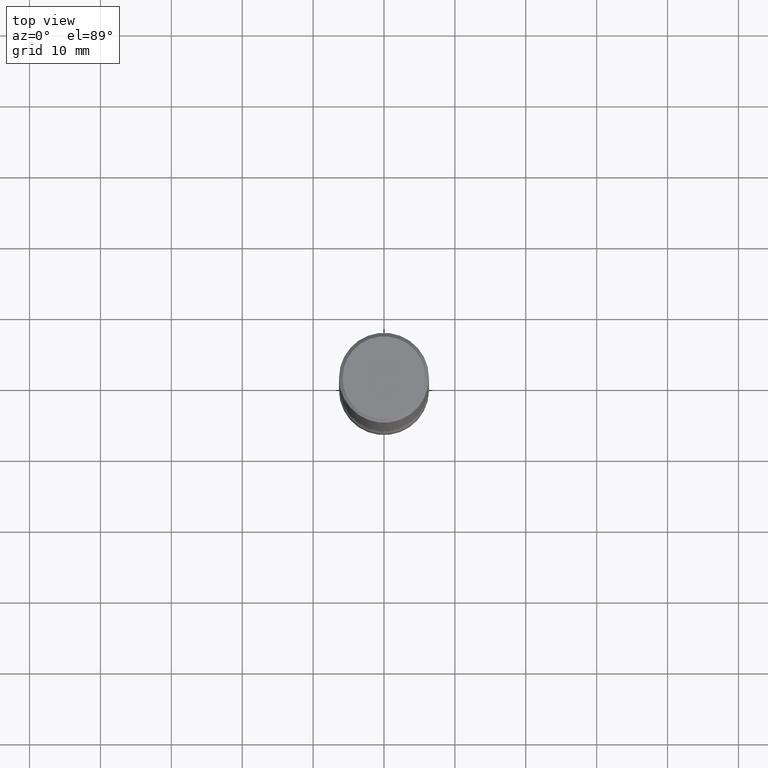
[diagram: clean part render]
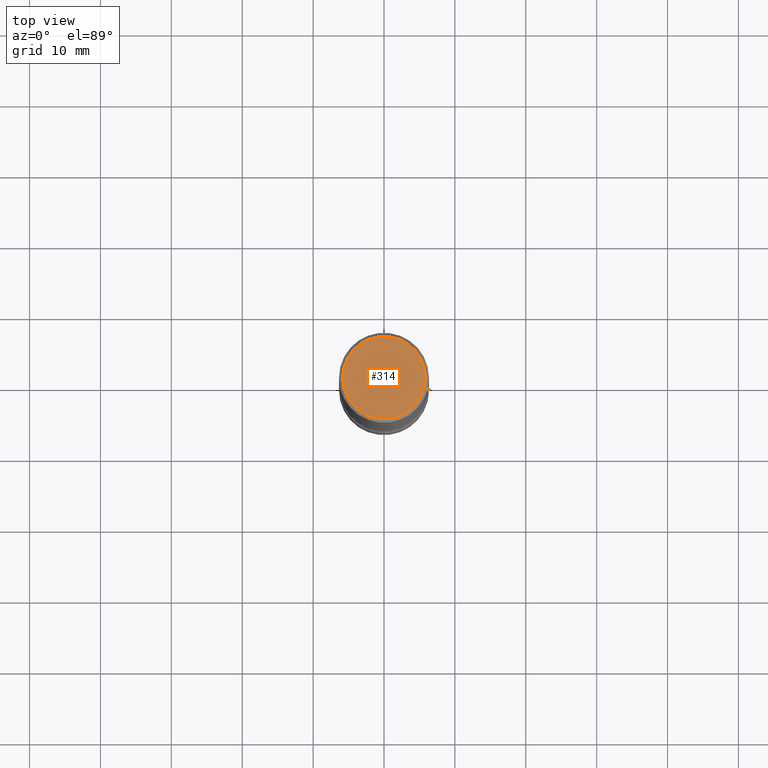
[diagram: same view with one face highlighted and labeled with its STEP entity id]
A machine part, top view. The second image highlights one B-rep face of the part: STEP entity #314.
In plain terms, the highlighted planar face has unit normal (0, -0, -1).
Its self-contained STEP definition (entity closure, byte-faithful):
#2 = FACE_OUTER_BOUND ( 'NONE', #260, .T. ) ;
#7 = CARTESIAN_POINT ( 'NONE',  ( 1.606081415867839292E-15, 0.2299999999999997324, -8.009064516888723911E-16 ) ) ;
#76 = CIRCLE ( 'NONE', #711, 0.2299999999999997324 ) ;
#77 = CIRCLE ( 'NONE', #584, 0.2299999999999997324 ) ;
#141 = VERTEX_POINT ( 'NONE', #302 ) ;
#142 = CARTESIAN_POINT ( 'NONE',  ( -1.043851414335219820E-46, 1.490343170380447200E-32, 4.268512490100411279E-18 ) ) ;
#241 = CARTESIAN_POINT ( 'NONE',  ( 0.2299999999999997324, -1.681434332853597433E-15, 4.268512490111905999E-18 ) ) ;
#248 = DIRECTION ( 'NONE',  ( 2.438088387897960049E-29, -3.491481338843145188E-15, -1.000000000000000000 ) ) ;
#260 = EDGE_LOOP ( 'NONE', ( #485, #496 ) ) ;
#272 = DIRECTION ( 'NONE',  ( -2.445468806185136597E-29, 3.491481338843145583E-15, 1.000000000000000000 ) ) ;
#302 = CARTESIAN_POINT ( 'NONE',  ( -0.2299999999999997324, 1.640996229256270744E-15, 4.268512490089056766E-18 ) ) ;
#310 = EDGE_CURVE ( 'NONE', #141, #577, #76, .T. ) ;
#314 = ADVANCED_FACE ( 'NONE', ( #2 ), #696, .F. ) ;
#318 = CARTESIAN_POINT ( 'NONE',  ( -1.043851414335219820E-46, 1.490343170380447200E-32, 4.268512490100411279E-18 ) ) ;
#347 = DIRECTION ( 'NONE',  ( 1.000000000000000000, -6.982962677686266711E-15, 4.876225828469314487E-29 ) ) ;
#447 = DIRECTION ( 'NONE',  ( -1.000000000000000000, 6.982962677686265922E-15, -4.876176775795935793E-29 ) ) ;
#485 = ORIENTED_EDGE ( 'NONE', *, *, #310, .T. ) ;
#496 = ORIENTED_EDGE ( 'NONE', *, *, #708, .T. ) ;
#561 = DIRECTION ( 'NONE',  ( 1.000000000000000000, -6.982962677686266711E-15, 4.876225828469314487E-29 ) ) ;
#565 = DIRECTION ( 'NONE',  ( -2.445468806185136597E-29, 3.491481338843145583E-15, 1.000000000000000000 ) ) ;
#577 = VERTEX_POINT ( 'NONE', #241 ) ;
#584 = AXIS2_PLACEMENT_3D ( 'NONE', #142, #272, #347 ) ;
#656 = AXIS2_PLACEMENT_3D ( 'NONE', #7, #248, #447 ) ;
#696 = PLANE ( 'NONE',  #656 ) ;
#708 = EDGE_CURVE ( 'NONE', #577, #141, #77, .T. ) ;
#711 = AXIS2_PLACEMENT_3D ( 'NONE', #318, #565, #561 ) ;